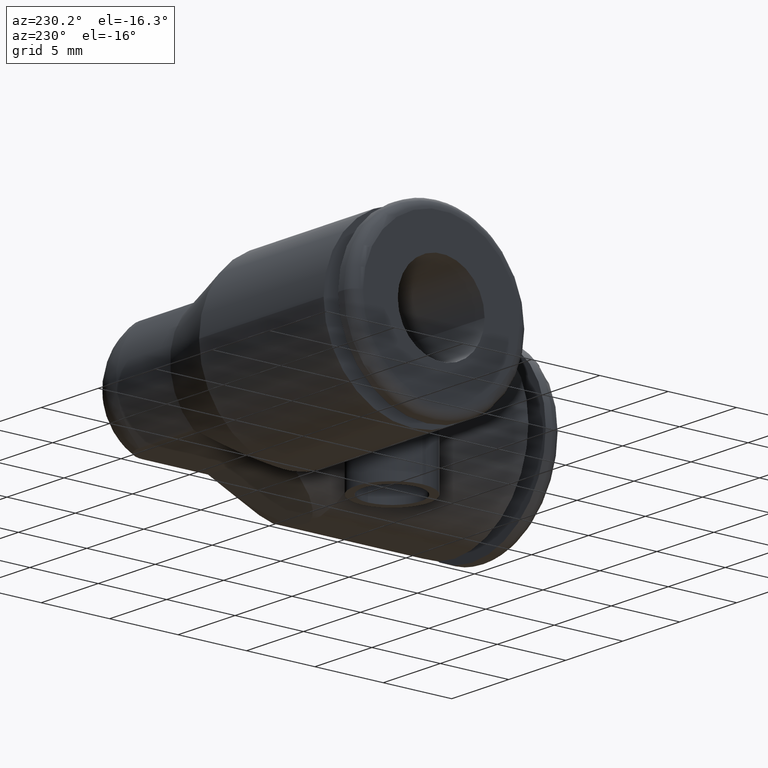
[diagram: clean part render]
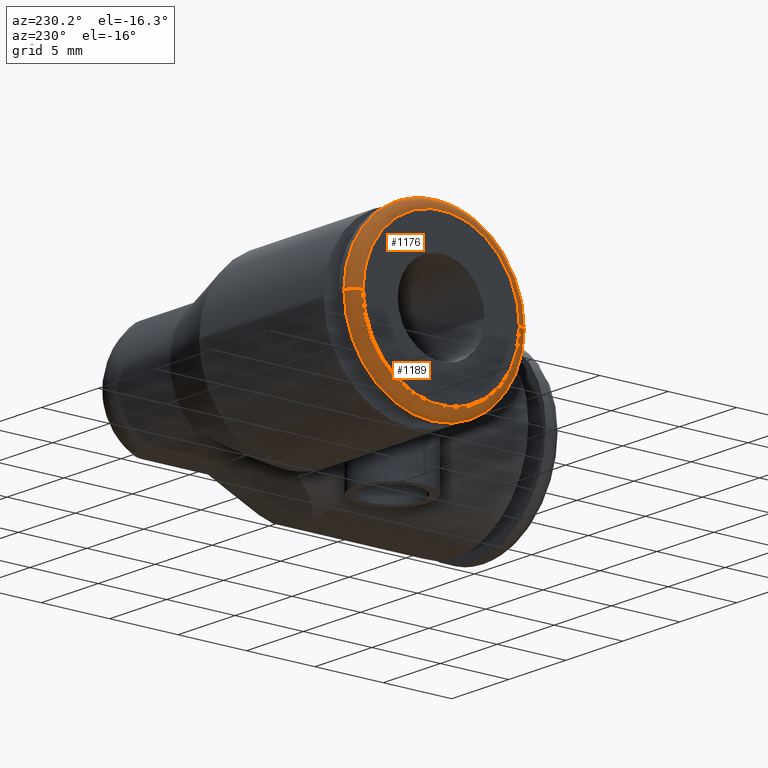
[diagram: same view with one multi-face feature highlighted, each face labeled with its STEP entity id]
A machine part, auxiliary view. The highlighted faces form ONE feature: a constant-radius fillet chain: 2 tangent blend faces with common blend radius 0.762 mm. The faces share edges in the B-rep.
Their STEP definitions:
[1] entity #1189 (Torus):
#272=CARTESIAN_POINT('',(-8.E-1,-2.25E-1,0.E0));
#273=DIRECTION('',(0.E0,0.E0,1.E0));
#274=DIRECTION('',(-1.E0,0.E0,0.E0));
#275=AXIS2_PLACEMENT_3D('',#272,#273,#274);
#277=CARTESIAN_POINT('',(-8.3E-1,0.E0,0.E0));
#278=DIRECTION('',(-1.E0,0.E0,0.E0));
#279=DIRECTION('',(0.E0,1.E0,0.E0));
#280=AXIS2_PLACEMENT_3D('',#277,#278,#279);
#282=CARTESIAN_POINT('',(-8.E-1,0.E0,0.E0));
#283=DIRECTION('',(-1.E0,0.E0,0.E0));
#284=DIRECTION('',(0.E0,1.E0,0.E0));
#285=AXIS2_PLACEMENT_3D('',#282,#283,#284);
#287=CARTESIAN_POINT('',(-8.E-1,2.25E-1,0.E0));
#288=DIRECTION('',(0.E0,0.E0,-1.E0));
#289=DIRECTION('',(-1.E0,0.E0,0.E0));
#290=AXIS2_PLACEMENT_3D('',#287,#288,#289);
#960=CARTESIAN_POINT('',(-8.3E-1,-2.249999964899E-1,0.E0));
#961=CARTESIAN_POINT('',(-8.3E-1,2.249999964899E-1,0.E0));
#962=VERTEX_POINT('',#960);
#963=VERTEX_POINT('',#961);
#964=CARTESIAN_POINT('',(-8.E-1,-2.55E-1,0.E0));
#965=CARTESIAN_POINT('',(-8.E-1,2.55E-1,0.E0));
#966=VERTEX_POINT('',#964);
#967=VERTEX_POINT('',#965);
#1177=CARTESIAN_POINT('',(-8.E-1,0.E0,0.E0));
#1178=DIRECTION('',(1.E0,0.E0,0.E0));
#1179=DIRECTION('',(0.E0,9.999040677724E-1,1.385118234246E-2));
#1180=AXIS2_PLACEMENT_3D('',#1177,#1178,#1179);
#1181=TOROIDAL_SURFACE('',#1180,2.25E-1,3.E-2);
#1182=ORIENTED_EDGE('',*,*,#1153,.T.);
#1183=ORIENTED_EDGE('',*,*,#1172,.T.);
#1185=ORIENTED_EDGE('',*,*,#1184,.F.);
#1186=ORIENTED_EDGE('',*,*,#1168,.F.);
#1187=EDGE_LOOP('',(#1182,#1183,#1185,#1186));
#1188=FACE_OUTER_BOUND('',#1187,.F.);
#1189=ADVANCED_FACE('',(#1188),#1181,.T.);
#276=CIRCLE('',#275,3.E-2);
#281=CIRCLE('',#280,2.249999964899E-1);
#286=CIRCLE('',#285,2.55E-1);
#291=CIRCLE('',#290,3.E-2);
#1153=EDGE_CURVE('',#963,#962,#281,.T.);
#1168=EDGE_CURVE('',#963,#967,#291,.T.);
#1172=EDGE_CURVE('',#962,#966,#276,.T.);
#1184=EDGE_CURVE('',#967,#966,#286,.T.);
[2] entity #1176 (Torus):
#262=CARTESIAN_POINT('',(-8.3E-1,0.E0,0.E0));
#263=DIRECTION('',(-1.E0,0.E0,0.E0));
#264=DIRECTION('',(0.E0,-1.E0,0.E0));
#265=AXIS2_PLACEMENT_3D('',#262,#263,#264);
#267=CARTESIAN_POINT('',(-8.E-1,0.E0,0.E0));
#268=DIRECTION('',(-1.E0,0.E0,0.E0));
#269=DIRECTION('',(0.E0,-1.E0,0.E0));
#270=AXIS2_PLACEMENT_3D('',#267,#268,#269);
#272=CARTESIAN_POINT('',(-8.E-1,-2.25E-1,0.E0));
#273=DIRECTION('',(0.E0,0.E0,1.E0));
#274=DIRECTION('',(-1.E0,0.E0,0.E0));
#275=AXIS2_PLACEMENT_3D('',#272,#273,#274);
#287=CARTESIAN_POINT('',(-8.E-1,2.25E-1,0.E0));
#288=DIRECTION('',(0.E0,0.E0,-1.E0));
#289=DIRECTION('',(-1.E0,0.E0,0.E0));
#290=AXIS2_PLACEMENT_3D('',#287,#288,#289);
#960=CARTESIAN_POINT('',(-8.3E-1,-2.249999964899E-1,0.E0));
#961=CARTESIAN_POINT('',(-8.3E-1,2.249999964899E-1,0.E0));
#962=VERTEX_POINT('',#960);
#963=VERTEX_POINT('',#961);
#964=CARTESIAN_POINT('',(-8.E-1,-2.55E-1,0.E0));
#965=CARTESIAN_POINT('',(-8.E-1,2.55E-1,0.E0));
#966=VERTEX_POINT('',#964);
#967=VERTEX_POINT('',#965);
#1162=CARTESIAN_POINT('',(-8.E-1,0.E0,0.E0));
#1163=DIRECTION('',(1.E0,0.E0,0.E0));
#1164=DIRECTION('',(0.E0,-9.999040677724E-1,-1.385118234246E-2));
#1165=AXIS2_PLACEMENT_3D('',#1162,#1163,#1164);
#1166=TOROIDAL_SURFACE('',#1165,2.25E-1,3.E-2);
#1167=ORIENTED_EDGE('',*,*,#1151,.T.);
#1169=ORIENTED_EDGE('',*,*,#1168,.T.);
#1171=ORIENTED_EDGE('',*,*,#1170,.F.);
#1173=ORIENTED_EDGE('',*,*,#1172,.F.);
#1174=EDGE_LOOP('',(#1167,#1169,#1171,#1173));
#1175=FACE_OUTER_BOUND('',#1174,.F.);
#1176=ADVANCED_FACE('',(#1175),#1166,.T.);
#266=CIRCLE('',#265,2.249999964899E-1);
#271=CIRCLE('',#270,2.55E-1);
#276=CIRCLE('',#275,3.E-2);
#291=CIRCLE('',#290,3.E-2);
#1151=EDGE_CURVE('',#962,#963,#266,.T.);
#1168=EDGE_CURVE('',#963,#967,#291,.T.);
#1170=EDGE_CURVE('',#966,#967,#271,.T.);
#1172=EDGE_CURVE('',#962,#966,#276,.T.);